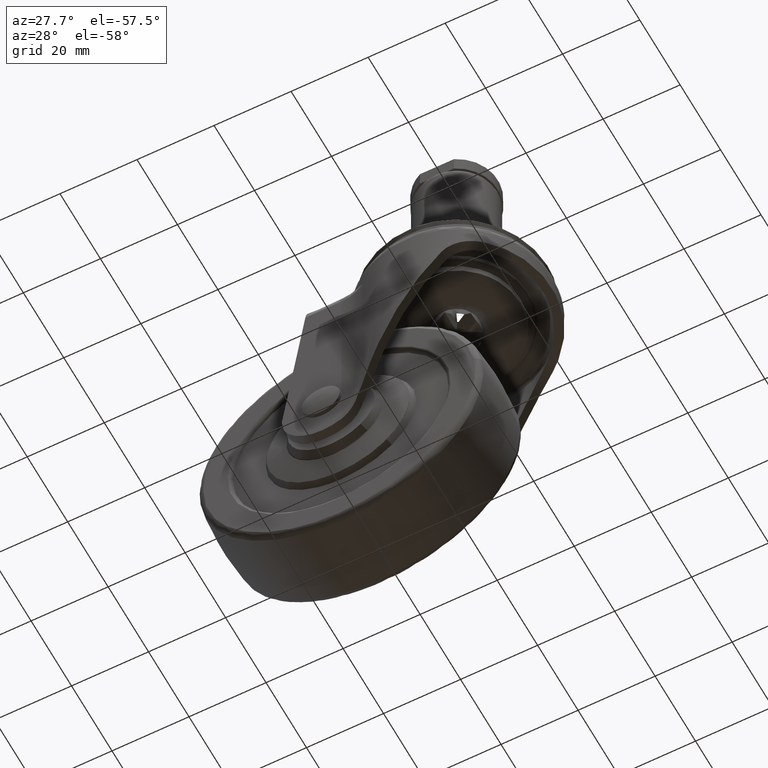
[diagram: clean part render]
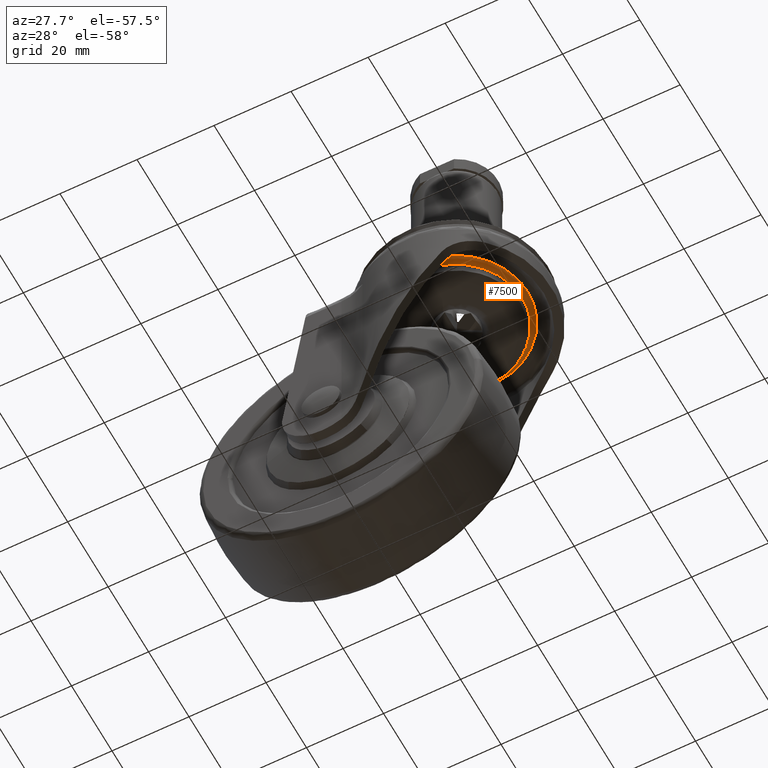
[diagram: same view with one face highlighted and labeled with its STEP entity id]
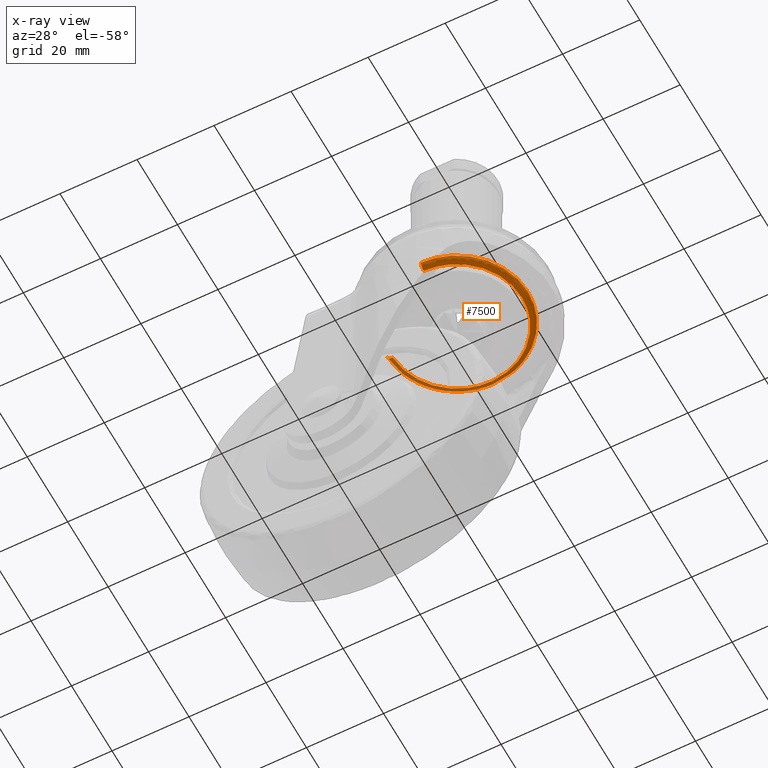
[diagram: x-ray of the same camera — body ghosted, the highlighted face saturated]
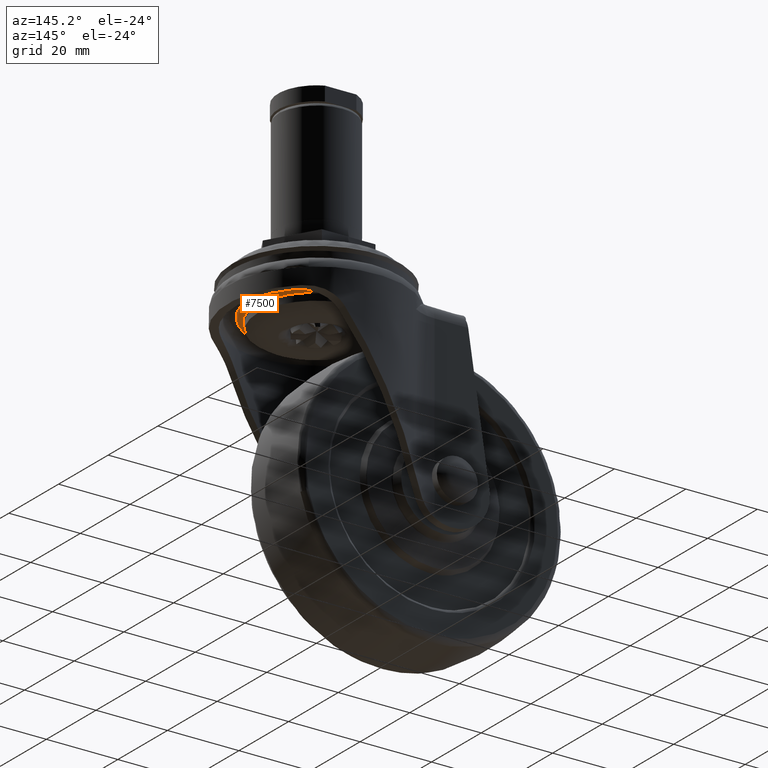
[diagram: same view with one face highlighted and labeled with its STEP entity id]
A machine part, auxiliary view. The second image highlights one B-rep face of the part: STEP entity #7500.
The next image is the same camera in x-ray: the body ghosted, the highlighted face saturated — about 21% of this face is hidden behind the body in this view.
A second angle (auxiliary view) of the same face is appended — the face is thin or edge-on in the first view.
In plain terms, the highlighted face is a freeform B-spline surface patch.
Its self-contained STEP definition (entity closure, byte-faithful):
#7339=CARTESIAN_POINT('',(0.328913788000212,-16.844146043829614,-14.758847770111991));
#7340=CARTESIAN_POINT('',(16.235741046681756,-16.533535176700816,-14.758847770111977));
#7341=CARTESIAN_POINT('',(16.835386561325823,-0.634979965453472,-14.758847770111979));
#7342=CARTESIAN_POINT('',(17.470366526779291,16.200406595872355,-14.758847770111981));
#7343=CARTESIAN_POINT('',(0.634979965453473,16.835386561325823,-14.758847770111979));
#7344=CARTESIAN_POINT('',(-16.200406595872355,17.470366526779305,-14.758847770111981));
#7345=CARTESIAN_POINT('',(-16.835386561325823,0.634979965453474,-14.758847770111979));
#7346=CARTESIAN_POINT('',(0.361613173643400,-18.518728403742717,-14.874174185287531));
#7347=CARTESIAN_POINT('',(17.849838044306033,-18.177237759299118,-14.874174185287531));
#7348=CARTESIAN_POINT('',(18.509098086063013,-0.698107312264629,-14.874174185287529));
#7349=CARTESIAN_POINT('',(19.207205398327648,17.810990773798387,-14.874174185287533));
#7350=CARTESIAN_POINT('',(0.698107312264630,18.509098086063013,-14.874174185287529));
#7351=CARTESIAN_POINT('',(-17.810990773798387,19.207205398327648,-14.874174185287533));
#7352=CARTESIAN_POINT('',(-18.509098086063013,0.698107312264631,-14.874174185287529));
#7353=CARTESIAN_POINT('',(0.360182278618119,-18.445450220648713,-13.196907428801666));
#7354=CARTESIAN_POINT('',(17.779206645006262,-18.105310846844390,-13.196907428801655));
#7355=CARTESIAN_POINT('',(18.435858009914966,-0.695344917658904,-13.196907428801657));
#7356=CARTESIAN_POINT('',(19.131202927573870,17.740513092256055,-13.196907428801659));
#7357=CARTESIAN_POINT('',(0.695344917658905,18.435858009914966,-13.196907428801657));
#7358=CARTESIAN_POINT('',(-17.740513092256055,19.131202927573884,-13.196907428801659));
#7359=CARTESIAN_POINT('',(-18.435858009914966,0.695344917658907,-13.196907428801657));
#7367=(BOUNDED_SURFACE()B_SPLINE_SURFACE(2,2,((#7339,#7346,#7353),(#7340,#7347,#7354),(#7341,#7348,#7355),(#7342,#7349,#7356),(#7343,#7350,#7357),(#7344,#7351,#7358),(#7345,#7352,#7359)),.UNSPECIFIED.,.F.,.F.,.U.)B_SPLINE_SURFACE_WITH_KNOTS((3,2,2,3),(3,3),(0.0,29.344558611038099,59.911807164202777,90.479055717367473),(0.0,2.685218077326889),.UNSPECIFIED.)GEOMETRIC_REPRESENTATION_ITEM()RATIONAL_B_SPLINE_SURFACE(((0.890321166536648,0.593197763717078,0.890343163660248),(0.654710074417145,0.436216240413628,0.654726250308464),(0.910809087590518,0.606848330960857,0.910831590908230),(0.644039282201587,0.429106569974160,0.644055194450141),(0.910809087590518,0.606848330960857,0.910831590908230),(0.644039282201587,0.429106569974160,0.644055194450141),(0.910809087590518,0.606848330960857,0.910831590908230)))REPRESENTATION_ITEM('')SURFACE());
#7368=CARTESIAN_POINT('',(16.950396553080999,0.0,-14.762390999999800));
#7369=VERTEX_POINT('',#7368);
#7370=CARTESIAN_POINT('',(0.330925445311491,-16.947165891135679,-14.762390999999800));
#7371=VERTEX_POINT('',#7370);
#7372=CARTESIAN_POINT('',(16.950396553080999,0.0,-14.762390999999800));
#7373=CARTESIAN_POINT('',(16.950525871366651,-1.061380714257778,-14.762390999999839));
#7374=CARTESIAN_POINT('',(16.795498882822780,-2.704744171714506,-14.762390999999740));
#7375=CARTESIAN_POINT('',(16.177794475564500,-5.236007274310454,-14.762390999999839));
#7376=CARTESIAN_POINT('',(15.169305753419311,-7.793252275235137,-14.762390999999720));
#7377=CARTESIAN_POINT('',(13.543037162130959,-10.349710445507220,-14.762390999999930));
#7378=CARTESIAN_POINT('',(11.743855817960640,-12.287011736939940,-14.762390999999599));
#7379=CARTESIAN_POINT('',(10.085236829109370,-13.670444119155119,-14.762391000000250));
#7380=CARTESIAN_POINT('',(8.506955008681858,-14.704582975038910,-14.762390999998701));
#7381=CARTESIAN_POINT('',(6.637625173543309,-15.642193729638210,-14.762391000000740));
#7382=CARTESIAN_POINT('',(3.987936129567612,-16.590707889176532,-14.762390999998820));
#7383=CARTESIAN_POINT('',(1.768696486271267,-16.919539249957680,-14.762391000000420));
#7384=CARTESIAN_POINT('',(0.330925445311491,-16.947165891135679,-14.762390999999800));
#7385=B_SPLINE_CURVE_WITH_KNOTS('',3,(#7372,#7373,#7374,#7375,#7376,#7377,#7378,#7379,#7380,#7381,#7382,#7383,#7384),.UNSPECIFIED.,.F.,.U.,(4,1,1,1,1,1,1,1,1,1,4),(0.000000082317150,3.184113462409517,4.930258756523596,7.806254070007103,11.401236918583029,13.969029524652351,15.715175202667220,17.872179073799650,19.618321984091288,21.980745617819419,26.294714403036519),.UNSPECIFIED.);
#7386=EDGE_CURVE('',#7369,#7371,#7385,.T.);
#7387=ORIENTED_EDGE('',*,*,#7386,.F.);
#7388=CARTESIAN_POINT('',(0.319426140265313,16.947386531486661,-14.762390999999800));
#7389=VERTEX_POINT('',#7388);
#7390=CARTESIAN_POINT('',(0.319426140265313,16.947386531486661,-14.762390999999800));
#7391=CARTESIAN_POINT('',(1.244090161944426,16.930020411186302,-14.762390999999811));
#7392=CARTESIAN_POINT('',(3.090537396972967,16.743388842326080,-14.762390999999800));
#7393=CARTESIAN_POINT('',(5.445865446625325,16.105810420804922,-14.762390999999820));
#7394=CARTESIAN_POINT('',(7.564460548431076,15.215661640455910,-14.762390999999770));
#7395=CARTESIAN_POINT('',(9.651563438378027,14.023585780712571,-14.762390999999850));
#7396=CARTESIAN_POINT('',(11.631221459255469,12.423906779427361,-14.762390999999750));
#7397=CARTESIAN_POINT('',(13.175893694104120,10.720345578728370,-14.762390999999861));
#7398=CARTESIAN_POINT('',(14.398849369962051,9.023206390642093,-14.762390999999830));
#7399=CARTESIAN_POINT('',(15.657694167780420,6.736681780154933,-14.762390999999610));
#7400=CARTESIAN_POINT('',(16.691395730862251,3.630754829557985,-14.762390999999729));
#7401=CARTESIAN_POINT('',(16.950555447313459,1.198848330597085,-14.762390999999930));
#7402=CARTESIAN_POINT('',(16.950396553080999,0.0,-14.762390999999800));
#7403=B_SPLINE_CURVE_WITH_KNOTS('',3,(#7390,#7391,#7392,#7393,#7394,#7395,#7396,#7397,#7398,#7399,#7400,#7401,#7402),.UNSPECIFIED.,.F.,.U.,(4,1,1,1,1,1,1,1,1,1,4),(0.000000082493194,2.774476913590114,5.548963693557369,7.295865618788021,9.659318013853891,12.742098994635320,14.899998404786629,16.544116874806210,19.010348470800391,22.709688452023979,26.306215872558798),.UNSPECIFIED.);
#7404=EDGE_CURVE('',#7389,#7369,#7403,.T.);
#7405=ORIENTED_EDGE('',*,*,#7404,.F.);
#7406=CARTESIAN_POINT('',(-16.938352851110380,0.638863544104945,-14.762390999999800));
#7407=VERTEX_POINT('',#7406);
#7408=CARTESIAN_POINT('',(-16.938352851110380,0.638863544104945,-14.762390999999800));
#7409=CARTESIAN_POINT('',(-16.898460836428480,1.699952980528768,-14.762390999999770));
#7410=CARTESIAN_POINT('',(-16.681448668311429,3.337013926363760,-14.762390999999839));
#7411=CARTESIAN_POINT('',(-15.986971354624581,5.778227354035991,-14.762390999999770));
#7412=CARTESIAN_POINT('',(-15.061036242026400,7.923352854788157,-14.762390999999800));
#7413=CARTESIAN_POINT('',(-13.523274657737250,10.364957794939469,-14.762390999999869));
#7414=CARTESIAN_POINT('',(-11.462213108813041,12.631810373367330,-14.762390999999591));
#7415=CARTESIAN_POINT('',(-9.087050945653274,14.396112397650150,-14.762391000000090));
#7416=CARTESIAN_POINT('',(-6.465998948479492,15.754917016423819,-14.762390999999530));
#7417=CARTESIAN_POINT('',(-3.418655743672390,16.736239956807630,-14.762390999999679));
#7418=CARTESIAN_POINT('',(-0.981964924588062,16.972210432361290,-14.762390999999971));
#7419=CARTESIAN_POINT('',(0.319426140265313,16.947386531486661,-14.762390999999800));
#7420=B_SPLINE_CURVE_WITH_KNOTS('',3,(#7408,#7409,#7410,#7411,#7412,#7413,#7414,#7415,#7416,#7417,#7418,#7419),.UNSPECIFIED.,.F.,.U.,(4,1,1,1,1,1,1,1,1,4),(0.000000082502478,3.185489987870987,4.932391306363837,7.604113615504168,10.173088354505539,13.564053859027879,16.749555945449352,19.010258297697678,22.401283929825020,26.306091092429568),.UNSPECIFIED.);
#7421=EDGE_CURVE('',#7407,#7389,#7420,.T.);
#7422=ORIENTED_EDGE('',*,*,#7421,.F.);
#7423=CARTESIAN_POINT('',(-18.436815823497948,0.695381043675518,-13.300000000144200));
#7424=VERTEX_POINT('',#7423);
#7425=CARTESIAN_POINT('',(-16.938352851110380,0.638863544104945,-14.762390999999800));
#7426=CARTESIAN_POINT('',(-17.095222359607519,0.644780188366733,-14.762442033179459));
#7427=CARTESIAN_POINT('',(-17.445206191607909,0.657980521894765,-14.707023356941320));
#7428=CARTESIAN_POINT('',(-17.875047210905031,0.674192827459483,-14.468065572079730));
#7429=CARTESIAN_POINT('',(-18.153278211127500,0.684686860834167,-14.161317295851489));
#7430=CARTESIAN_POINT('',(-18.364014013220618,0.692635179116133,-13.793272300407340));
#7431=CARTESIAN_POINT('',(-18.431938688041161,0.695197092821795,-13.505291297944490));
#7432=CARTESIAN_POINT('',(-18.436815823497948,0.695381043675518,-13.300000000144200));
#7433=B_SPLINE_CURVE_WITH_KNOTS('',3,(#7425,#7426,#7427,#7428,#7429,#7430,#7431,#7432),.UNSPECIFIED.,.F.,.U.,(4,1,1,1,1,4),(0.000000301482657,0.470968833621784,1.050647858345640,1.449143850817690,1.702746846421056,2.318637866172470),.UNSPECIFIED.);
#7434=EDGE_CURVE('',#7407,#7424,#7433,.T.);
#7435=ORIENTED_EDGE('',*,*,#7434,.T.);
#7436=CARTESIAN_POINT('',(0.347710024627417,18.446648211650668,-13.300000000000001));
#7437=VERTEX_POINT('',#7436);
#7438=CARTESIAN_POINT('',(-18.436815823497948,0.695381043675518,-13.300000000144200));
#7439=CARTESIAN_POINT('',(-18.385107362556479,2.073904213698081,-13.300000000138541));
#7440=CARTESIAN_POINT('',(-18.054170909479499,4.262539163333563,-13.300000000128881));
#7441=CARTESIAN_POINT('',(-16.968616668542619,7.445472114302313,-13.300000000111810));
#7442=CARTESIAN_POINT('',(-15.648510776503089,9.924449730337942,-13.300000000097230));
#7443=CARTESIAN_POINT('',(-13.997640071802261,12.095866390736481,-13.300000000081679));
#7444=CARTESIAN_POINT('',(-12.085385626923360,14.039570659228261,-13.300000000067049));
#7445=CARTESIAN_POINT('',(-9.890923156146602,15.669667218437709,-13.300000000051410));
#7446=CARTESIAN_POINT('',(-7.170671766770344,17.079828311234209,-13.300000000035610));
#7447=CARTESIAN_POINT('',(-3.870712965318170,18.186986211820660,-13.300000000017659));
#7448=CARTESIAN_POINT('',(-1.217927211310151,18.476628633355830,-13.300000000006071));
#7449=CARTESIAN_POINT('',(0.347710024627417,18.446648211650668,-13.300000000000001));
#7450=B_SPLINE_CURVE_WITH_KNOTS('',3,(#7438,#7439,#7440,#7441,#7442,#7443,#7444,#7445,#7446,#7447,#7448,#7449),.UNSPECIFIED.,.F.,.U.,(4,1,1,1,1,1,1,1,1,4),(0.000000081596411,4.138399819337749,6.599080939781572,10.066400834877840,12.527078504090600,14.764010732296541,18.231339655554692,20.692031344135842,23.935659011952371,28.633303090038691),.UNSPECIFIED.);
#7451=EDGE_CURVE('',#7424,#7437,#7450,.T.);
#7452=ORIENTED_EDGE('',*,*,#7451,.T.);
#7453=CARTESIAN_POINT('',(18.449924999999901,0.0,-13.300000000000001));
#7454=VERTEX_POINT('',#7453);
#7455=CARTESIAN_POINT('',(0.347710024627417,18.446648211650668,-13.300000000000001));
#7456=CARTESIAN_POINT('',(1.391446863559298,18.427043219242371,-13.299999999995880));
#7457=CARTESIAN_POINT('',(3.475546679059091,18.210008059892029,-13.299999999988460));
#7458=CARTESIAN_POINT('',(6.429795183017812,17.381429318554488,-13.299999999980130));
#7459=CARTESIAN_POINT('',(9.004812624147345,16.178032078090091,-13.299999999974229));
#7460=CARTESIAN_POINT('',(11.500935534330059,14.533291510608739,-13.299999999970950));
#7461=CARTESIAN_POINT('',(13.921187283239041,12.295366136473691,-13.299999999969939));
#7462=CARTESIAN_POINT('',(15.915189646530759,9.528116661373094,-13.299999999972769));
#7463=CARTESIAN_POINT('',(17.139706386144201,6.963817099057348,-13.299999999978089));
#7464=CARTESIAN_POINT('',(18.144551481543711,3.914482067249375,-13.299999999985770));
#7465=CARTESIAN_POINT('',(18.450505814282572,1.640524513328900,-13.299999999994080));
#7466=CARTESIAN_POINT('',(18.449924999999901,0.0,-13.300000000000001));
#7467=B_SPLINE_CURVE_WITH_KNOTS('',3,(#7455,#7456,#7457,#7458,#7459,#7460,#7461,#7462,#7463,#7464,#7465,#7466),.UNSPECIFIED.,.F.,.U.,(4,1,1,1,1,1,1,1,1,4),(0.000000081578246,3.131755867042447,6.263547167739173,9.171647704570951,11.632345947649929,15.211440272694199,19.014351818058451,21.810590681797130,23.712034862018299,28.633387654608420),.UNSPECIFIED.);
#7468=EDGE_CURVE('',#7437,#7454,#7467,.T.);
#7469=ORIENTED_EDGE('',*,*,#7468,.T.);
#7470=CARTESIAN_POINT('',(0.360200991470469,-18.446408532587419,-13.300000000271041));
#7471=VERTEX_POINT('',#7470);
#7472=CARTESIAN_POINT('',(18.449924999999901,0.0,-13.300000000000001));
#7473=CARTESIAN_POINT('',(18.450006674129209,-1.043465374752836,-13.299999999999979));
#7474=CARTESIAN_POINT('',(18.272390918551721,-3.130366601201292,-13.300000000002710));
#7475=CARTESIAN_POINT('',(17.396941042949909,-6.496720405507928,-13.300000000015769));
#7476=CARTESIAN_POINT('',(15.793595801604591,-9.803718878788521,-13.300000000039750));
#7477=CARTESIAN_POINT('',(13.671193453875640,-12.518164675277070,-13.300000000071650));
#7478=CARTESIAN_POINT('',(11.245427876676979,-14.735971841003050,-13.300000000107930));
#7479=CARTESIAN_POINT('',(8.666447739093231,-16.403567721988320,-13.300000000146611));
#7480=CARTESIAN_POINT('',(6.005832094745704,-17.503903149037338,-13.300000000186410));
#7481=CARTESIAN_POINT('',(3.300366170442114,-18.220368062647399,-13.300000000227120));
#7482=CARTESIAN_POINT('',(1.515259933821940,-18.423990965661300,-13.300000000253490));
#7483=CARTESIAN_POINT('',(0.360200991470469,-18.446408532587419,-13.300000000271041));
#7484=B_SPLINE_CURVE_WITH_KNOTS('',3,(#7472,#7473,#7474,#7475,#7476,#7477,#7478,#7479,#7480,#7481,#7482,#7483),.UNSPECIFIED.,.F.,.U.,(4,1,1,1,1,1,1,1,1,4),(0.000000081383696,3.130390470749294,6.260814441289082,10.397459157416341,14.086868992650221,16.546441085247849,20.235864565353030,23.254489543801210,25.155095180657369,28.620894330863329),.UNSPECIFIED.);
#7485=EDGE_CURVE('',#7454,#7471,#7484,.T.);
#7486=ORIENTED_EDGE('',*,*,#7485,.T.);
#7487=CARTESIAN_POINT('',(0.330925445311491,-16.947165891135679,-14.762390999999800));
#7488=CARTESIAN_POINT('',(0.335406336398593,-17.176638740371899,-14.762766744722089));
#7489=CARTESIAN_POINT('',(0.342708176188540,-17.550576412290511,-14.674769615785751));
#7490=CARTESIAN_POINT('',(0.350551762728097,-17.952257711025268,-14.397482212792610));
#7491=CARTESIAN_POINT('',(0.355829440827893,-18.222535164159009,-14.085199227403921));
#7492=CARTESIAN_POINT('',(0.359238660094584,-18.397126164799630,-13.721559748797970));
#7493=CARTESIAN_POINT('',(0.360136543345554,-18.443108051831800,-13.432791264671479));
#7494=CARTESIAN_POINT('',(0.360200991470469,-18.446408532587419,-13.300000000271041));
#7495=B_SPLINE_CURVE_WITH_KNOTS('',3,(#7487,#7488,#7489,#7490,#7491,#7492,#7493,#7494),.UNSPECIFIED.,.F.,.U.,(4,1,1,1,1,4),(0.000000301482300,0.688350557409003,1.123136310395487,1.449143862859545,1.920128432179523,2.318637885439840),.UNSPECIFIED.);
#7496=EDGE_CURVE('',#7371,#7471,#7495,.T.);
#7497=ORIENTED_EDGE('',*,*,#7496,.F.);
#7498=EDGE_LOOP('',(#7387,#7405,#7422,#7435,#7452,#7469,#7486,#7497));
#7499=FACE_OUTER_BOUND('',#7498,.T.);
#7500=ADVANCED_FACE('',(#7499),#7367,.T.);